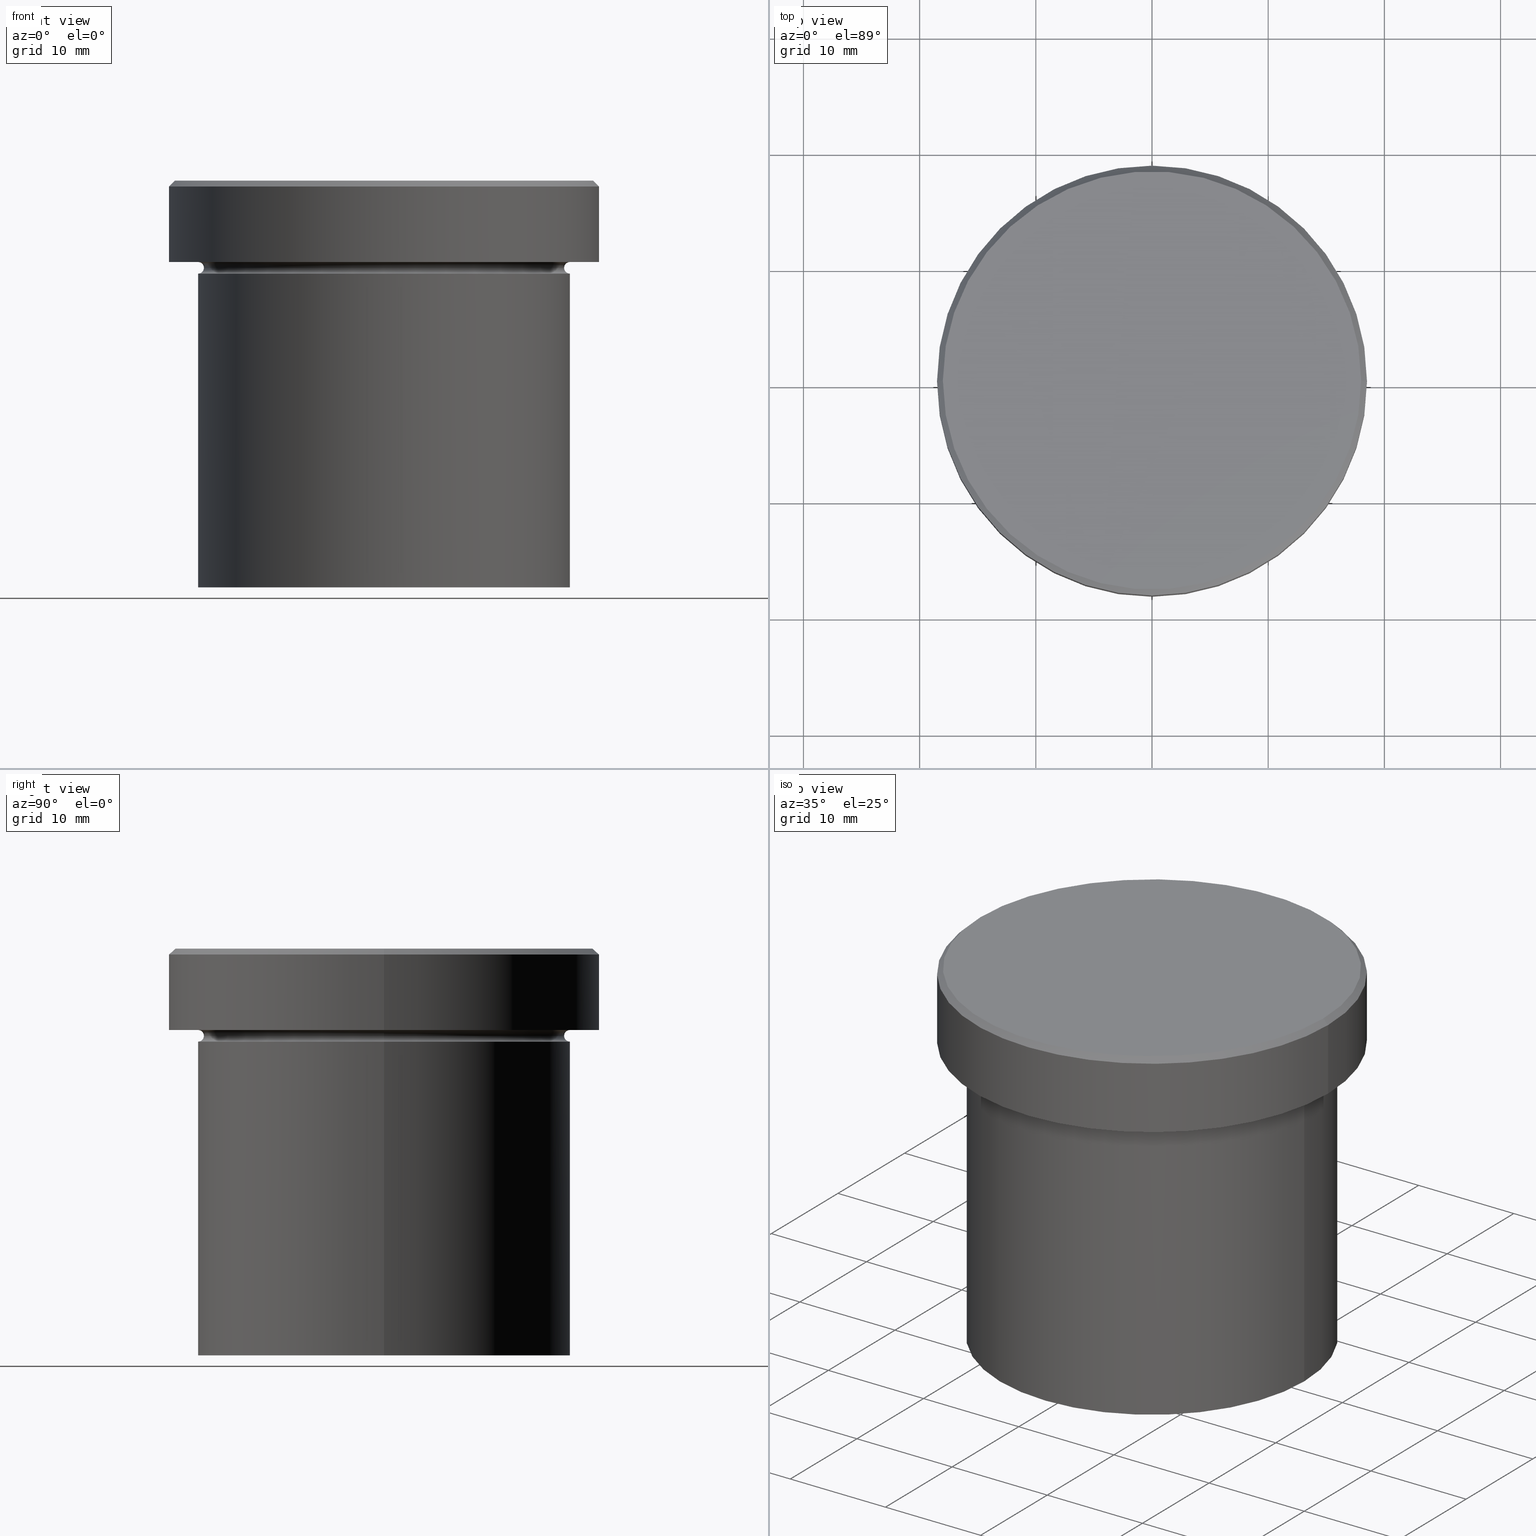
[diagram: canonical four-view strip — front | top / right | iso, engineering-drawing reading convention]
A machine part, canonical four-view strip (front | top / right | iso — engineering-drawing reading convention). The complete STEP part file that produces these views, byte-faithful:
ISO-10303-21;
HEADER;
FILE_DESCRIPTION (( 'STEP AP203' ),
    '1' );
FILE_NAME ('cc8f.STEP',
    '2024-01-02T19:17:05',
    ( '' ),
    ( '' ),
    'SwSTEP 2.0',
    'SolidWorks 2019',
    '' );
FILE_SCHEMA (( 'CONFIG_CONTROL_DESIGN' ));
ENDSEC;

DATA;
#1 = DIRECTION ( 'NONE',  ( 1.000000000000000000, 0.000000000000000000, 0.000000000000000000 ) ) ;
#2 = PLANE ( 'NONE',  #387 ) ;
#3 = DIRECTION ( 'NONE',  ( 1.000000000000000000, 0.000000000000000000, 0.000000000000000000 ) ) ;
#4 = CARTESIAN_POINT ( 'NONE',  ( 0.000000000000000000, 0.000000000000000000, -7.500000000000000000 ) ) ;
#5 = DIRECTION ( 'NONE',  ( 1.000000000000000000, 0.000000000000000000, 0.000000000000000000 ) ) ;
#6 = APPROVAL_PERSON_ORGANIZATION ( #404, #252, #60 ) ;
#7 = CYLINDRICAL_SURFACE ( 'NONE', #232, 16.00000000000000000 ) ;
#8 = EDGE_CURVE ( 'NONE', #229, #10, #128, .T. ) ;
#9 = FACE_OUTER_BOUND ( 'NONE', #403, .T. ) ;
#10 = VERTEX_POINT ( 'NONE', #344 ) ;
#11 = ADVANCED_FACE ( 'NONE', ( #65 ), #193, .T. ) ;
#12 = ORIENTED_EDGE ( 'NONE', *, *, #263, .F. ) ;
#13 = VERTEX_POINT ( 'NONE', #191 ) ;
#14 = APPROVAL_ROLE ( '' ) ;
#15 = EDGE_LOOP ( 'NONE', ( #257, #337 ) ) ;
#16 = AXIS2_PLACEMENT_3D ( 'NONE', #153, #48, #365 ) ;
#17 = ORIENTED_EDGE ( 'NONE', *, *, #8, .F. ) ;
#18 = FACE_OUTER_BOUND ( 'NONE', #24, .T. ) ;
#19 = DIRECTION ( 'NONE',  ( -0.000000000000000000, -0.000000000000000000, 1.000000000000000000 ) ) ;
#20 = CLOSED_SHELL ( 'NONE', ( #26, #395, #332, #329, #392, #39, #11, #360, #269, #218, #187, #33, #113 ) ) ;
#21 = EDGE_LOOP ( 'NONE', ( #148, #104, #323, #394 ) ) ;
#22 = CARTESIAN_POINT ( 'NONE',  ( 0.000000000000000000, 0.000000000000000000, -35.00000000000000000 ) ) ;
#23 = CIRCLE ( 'NONE', #409, 18.50000000000000000 ) ;
#24 = EDGE_LOOP ( 'NONE', ( #267, #326, #330, #17 ) ) ;
#25 = CARTESIAN_POINT ( 'NONE',  ( 0.000000000000000000, 0.000000000000000000, 0.000000000000000000 ) ) ;
#26 = ADVANCED_FACE ( 'NONE', ( #317 ), #341, .T. ) ;
#27 = CARTESIAN_POINT ( 'NONE',  ( 0.000000000000000000, 0.000000000000000000, -6.999999999999999112 ) ) ;
#28 = AXIS2_PLACEMENT_3D ( 'NONE', #157, #19, #212 ) ;
#29 = CARTESIAN_POINT ( 'NONE',  ( 16.00000000000000000, 1.959434878635765131E-15, -6.999999999999999112 ) ) ;
#30 = DIRECTION ( 'NONE',  ( -1.000000000000000000, 0.000000000000000000, 0.000000000000000000 ) ) ;
#31 = CARTESIAN_POINT ( 'NONE',  ( 0.000000000000000000, 0.000000000000000000, -35.00000000000000000 ) ) ;
#32 = CARTESIAN_POINT ( 'NONE',  ( 0.000000000000000000, 0.000000000000000000, -7.500000000000000000 ) ) ;
#33 = ADVANCED_FACE ( 'NONE', ( #281 ), #277, .F. ) ;
#34 = DIRECTION ( 'NONE',  ( 1.000000000000000000, 0.000000000000000000, 0.000000000000000000 ) ) ;
#35 = APPROVAL_PERSON_ORGANIZATION ( #177, #50, #400 ) ;
#36 = DIRECTION ( 'NONE',  ( 0.000000000000000000, 0.000000000000000000, -1.000000000000000000 ) ) ;
#37 = DIRECTION ( 'NONE',  ( 1.000000000000000000, 0.000000000000000000, 0.000000000000000000 ) ) ;
#38 = EDGE_LOOP ( 'NONE', ( #200, #274, #137, #301 ) ) ;
#39 = ADVANCED_FACE ( 'NONE', ( #9 ), #2, .T. ) ;
#40 = EDGE_LOOP ( 'NONE', ( #241, #270, #74, #109 ) ) ;
#41 = AXIS2_PLACEMENT_3D ( 'NONE', #322, #254, #390 ) ;
#42 = ORIENTED_EDGE ( 'NONE', *, *, #166, .T. ) ;
#43 = TOROIDAL_SURFACE ( 'NONE', #131, 16.00000000000000000, 0.5000000000000000000 ) ;
#44 = ORIENTED_EDGE ( 'NONE', *, *, #92, .T. ) ;
#45 = CC_DESIGN_DATE_AND_TIME_ASSIGNMENT ( #348, #120, ( #363 ) ) ;
#46 = ORIENTED_EDGE ( 'NONE', *, *, #285, .F. ) ;
#47 = AXIS2_PLACEMENT_3D ( 'NONE', #81, #310, #271 ) ;
#48 = DIRECTION ( 'NONE',  ( 0.000000000000000000, 0.000000000000000000, 1.000000000000000000 ) ) ;
#49 = ORIENTED_EDGE ( 'NONE', *, *, #285, .T. ) ;
#50 = APPROVAL ( #272, 'NEUR�EN�' ) ;
#51 = ORIENTED_EDGE ( 'NONE', *, *, #75, .F. ) ;
#52 = DIRECTION ( 'NONE',  ( 1.000000000000000000, 0.000000000000000000, 0.000000000000000000 ) ) ;
#53 = AXIS2_PLACEMENT_3D ( 'NONE', #117, #376, #215 ) ;
#54 = CIRCLE ( 'NONE', #290, 16.00000000000000000 ) ;
#55 = SHAPE_DEFINITION_REPRESENTATION ( #305, #111 ) ;
#56 = CC_DESIGN_DATE_AND_TIME_ASSIGNMENT ( #85, #336, ( #291 ) ) ;
#57 = LINE ( 'NONE', #368, #141 ) ;
#58 = APPROVAL_DATE_TIME ( #220, #50 ) ;
#59 = FACE_BOUND ( 'NONE', #145, .T. ) ;
#60 = APPROVAL_ROLE ( '' ) ;
#61 = CARTESIAN_POINT ( 'NONE',  ( 0.000000000000000000, 0.000000000000000000, 0.000000000000000000 ) ) ;
#62 = CARTESIAN_POINT ( 'NONE',  ( 0.000000000000000000, 0.000000000000000000, 0.000000000000000000 ) ) ;
#63 = LOCAL_TIME ( 20, 17, 5.000000000000000000, #206 ) ;
#64 = PERSON_AND_ORGANIZATION ( #361, #136 ) ;
#65 = FACE_OUTER_BOUND ( 'NONE', #171, .T. ) ;
#66 = CYLINDRICAL_SURFACE ( 'NONE', #163, 18.50000000000000000 ) ;
#67 = EDGE_CURVE ( 'NONE', #106, #359, #262, .T. ) ;
#68 = PERSON_AND_ORGANIZATION_ROLE ( 'classification_officer' ) ;
#69 = DIRECTION ( 'NONE',  ( 0.000000000000000000, -1.000000000000000000, 0.000000000000000000 ) ) ;
#70 = DIRECTION ( 'NONE',  ( 1.000000000000000000, 0.000000000000000000, 0.000000000000000000 ) ) ;
#71 = DIRECTION ( 'NONE',  ( -0.7071067811865549002, 0.000000000000000000, -0.7071067811865402453 ) ) ;
#72 = LOCAL_TIME ( 20, 17, 5.000000000000000000, #384 ) ;
#73 =( NAMED_UNIT ( * ) PLANE_ANGLE_UNIT ( ) SI_UNIT ( $, .RADIAN. ) );
#74 = ORIENTED_EDGE ( 'NONE', *, *, #139, .F. ) ;
#75 = EDGE_CURVE ( 'NONE', #106, #140, #208, .T. ) ;
#76 = ORIENTED_EDGE ( 'NONE', *, *, #210, .T. ) ;
#77 = TOROIDAL_SURFACE ( 'NONE', #130, 16.00000000000000000, 0.5000000000000000000 ) ;
#78 = LOCAL_TIME ( 20, 17, 5.000000000000000000, #240 ) ;
#79 = EDGE_CURVE ( 'NONE', #230, #229, #356, .T. ) ;
#80 = PERSON_AND_ORGANIZATION ( #361, #136 ) ;
#81 = CARTESIAN_POINT ( 'NONE',  ( -16.00000000000000000, 1.959434878635765131E-15, -7.500000000000000000 ) ) ;
#82 = ORIENTED_EDGE ( 'NONE', *, *, #201, .F. ) ;
#83 = CARTESIAN_POINT ( 'NONE',  ( -16.00000000000000000, 0.000000000000000000, -7.500000000000000000 ) ) ;
#84 = CC_DESIGN_PERSON_AND_ORGANIZATION_ASSIGNMENT ( #353, #313, ( #265 ) ) ;
#85 = DATE_AND_TIME ( #372, #294 ) ;
#86 = VERTEX_POINT ( 'NONE', #93 ) ;
#87 = EDGE_LOOP ( 'NONE', ( #138, #76, #178, #46 ) ) ;
#88 = LINE ( 'NONE', #165, #378 ) ;
#89 = APPLICATION_PROTOCOL_DEFINITION ( 'international standard', 'config_control_design', 1994, #318 ) ;
#90 = CIRCLE ( 'NONE', #333, 17.99999999999999645 ) ;
#91 = CC_DESIGN_APPROVAL ( #50, ( #265 ) ) ;
#92 = EDGE_CURVE ( 'NONE', #10, #229, #96, .T. ) ;
#93 = CARTESIAN_POINT ( 'NONE',  ( 17.99999999999999645, 2.234980408443919215E-15, 0.000000000000000000 ) ) ;
#94 = APPROVAL_STATUS ( 'not_yet_approved' ) ;
#95 = DIRECTION ( 'NONE',  ( 0.7071067811865549002, 8.659560562355021605E-17, -0.7071067811865402453 ) ) ;
#96 = CIRCLE ( 'NONE', #179, 16.00000000000000000 ) ;
#97 = CC_DESIGN_SECURITY_CLASSIFICATION ( #363, ( #265 ) ) ;
#98 = FACE_OUTER_BOUND ( 'NONE', #397, .T. ) ;
#99 = DIRECTION ( 'NONE',  ( -0.000000000000000000, -0.000000000000000000, 1.000000000000000000 ) ) ;
#100 = CARTESIAN_POINT ( 'NONE',  ( -18.50000000000000000, 2.265596578422603396E-15, -0.4999999999999936162 ) ) ;
#101 = LINE ( 'NONE', #228, #352 ) ;
#102 = AXIS2_PLACEMENT_3D ( 'NONE', #350, #36, #354 ) ;
#103 = UNCERTAINTY_MEASURE_WITH_UNIT (LENGTH_MEASURE( 1.000000000000000082E-05 ), #256, 'distance_accuracy_value', 'NONE');
#104 = ORIENTED_EDGE ( 'NONE', *, *, #201, .T. ) ;
#105 = ORIENTED_EDGE ( 'NONE', *, *, #210, .F. ) ;
#106 = VERTEX_POINT ( 'NONE', #134 ) ;
#107 = AXIS2_PLACEMENT_3D ( 'NONE', #83, #116, #331 ) ;
#108 = VECTOR ( 'NONE', #282, 1000.000000000000000 ) ;
#109 = ORIENTED_EDGE ( 'NONE', *, *, #119, .F. ) ;
#110 = CYLINDRICAL_SURFACE ( 'NONE', #142, 16.00000000000000000 ) ;
#111 = ADVANCED_BREP_SHAPE_REPRESENTATION ( 'cc8f', ( #164, #16 ), #198 ) ;
#112 = PERSON_AND_ORGANIZATION_ROLE ( 'design_owner' ) ;
#113 = ADVANCED_FACE ( 'NONE', ( #167 ), #325, .T. ) ;
#114 = DIRECTION ( 'NONE',  ( 0.000000000000000000, 0.000000000000000000, -1.000000000000000000 ) ) ;
#115 = VERTEX_POINT ( 'NONE', #358 ) ;
#116 = DIRECTION ( 'NONE',  ( -0.000000000000000000, -1.000000000000000000, -0.000000000000000000 ) ) ;
#117 = CARTESIAN_POINT ( 'NONE',  ( 0.000000000000000000, 0.000000000000000000, -8.000000000000000000 ) ) ;
#118 = DIRECTION ( 'NONE',  ( -1.000000000000000000, 0.000000000000000000, 0.000000000000000000 ) ) ;
#119 = EDGE_CURVE ( 'NONE', #121, #295, #101, .T. ) ;
#120 = DATE_TIME_ROLE ( 'classification_date' ) ;
#121 = VERTEX_POINT ( 'NONE', #303 ) ;
#122 = AXIS2_PLACEMENT_3D ( 'NONE', #300, #185, #154 ) ;
#123 = AXIS2_PLACEMENT_3D ( 'NONE', #380, #250, #70 ) ;
#124 = DIRECTION ( 'NONE',  ( -1.000000000000000000, 0.000000000000000000, 0.000000000000000000 ) ) ;
#125 = DIRECTION ( 'NONE',  ( 0.000000000000000000, 0.000000000000000000, -1.000000000000000000 ) ) ;
#126 = APPROVAL ( #173, 'NEUR�EN�' ) ;
#127 = FACE_OUTER_BOUND ( 'NONE', #204, .T. ) ;
#128 = CIRCLE ( 'NONE', #53, 16.00000000000000000 ) ;
#129 = DIRECTION ( 'NONE',  ( -0.000000000000000000, -0.000000000000000000, 1.000000000000000000 ) ) ;
#130 = AXIS2_PLACEMENT_3D ( 'NONE', #176, #207, #275 ) ;
#131 = AXIS2_PLACEMENT_3D ( 'NONE', #4, #355, #162 ) ;
#132 = DIRECTION ( 'NONE',  ( 0.000000000000000000, 0.000000000000000000, -1.000000000000000000 ) ) ;
#133 = CC_DESIGN_PERSON_AND_ORGANIZATION_ASSIGNMENT ( #80, #112, ( #296 ) ) ;
#134 = CARTESIAN_POINT ( 'NONE',  ( 15.50000000000000000, 0.000000000000000000, -7.500000000000000000 ) ) ;
#135 = ORIENTED_EDGE ( 'NONE', *, *, #180, .F. ) ;
#136 = ORGANIZATION ( 'NEUR�EN�', 'NEUR�EN�', '' ) ;
#137 = ORIENTED_EDGE ( 'NONE', *, *, #119, .T. ) ;
#138 = ORIENTED_EDGE ( 'NONE', *, *, #205, .F. ) ;
#139 = EDGE_CURVE ( 'NONE', #295, #276, #304, .T. ) ;
#140 = VERTEX_POINT ( 'NONE', #243 ) ;
#141 = VECTOR ( 'NONE', #338, 1000.000000000000000 ) ;
#142 = AXIS2_PLACEMENT_3D ( 'NONE', #146, #237, #335 ) ;
#143 = ORIENTED_EDGE ( 'NONE', *, *, #144, .T. ) ;
#144 = EDGE_CURVE ( 'NONE', #86, #121, #90, .T. ) ;
#145 = EDGE_LOOP ( 'NONE', ( #259, #405 ) ) ;
#146 = CARTESIAN_POINT ( 'NONE',  ( 0.000000000000000000, 0.000000000000000000, 0.000000000000000000 ) ) ;
#147 = APPROVAL_DATE_TIME ( #369, #126 ) ;
#148 = ORIENTED_EDGE ( 'NONE', *, *, #226, .T. ) ;
#149 = DIRECTION ( 'NONE',  ( 1.000000000000000000, 0.000000000000000000, 0.000000000000000000 ) ) ;
#150 = ORIENTED_EDGE ( 'NONE', *, *, #180, .T. ) ;
#151 = AXIS2_PLACEMENT_3D ( 'NONE', #22, #401, #149 ) ;
#152 = CARTESIAN_POINT ( 'NONE',  ( -16.00000000000000000, 1.959434878635765131E-15, -8.000000000000000000 ) ) ;
#153 = CARTESIAN_POINT ( 'NONE',  ( 0.000000000000000000, 0.000000000000000000, 0.000000000000000000 ) ) ;
#154 = DIRECTION ( 'NONE',  ( 1.000000000000000000, 0.000000000000000000, 0.000000000000000000 ) ) ;
#155 = PRODUCT_RELATED_PRODUCT_CATEGORY ( 'detail', '', ( #296 ) ) ;
#156 = EDGE_LOOP ( 'NONE', ( #82, #260, #202, #181 ) ) ;
#157 = CARTESIAN_POINT ( 'NONE',  ( 0.000000000000000000, 0.000000000000000000, 0.000000000000000000 ) ) ;
#158 = FACE_OUTER_BOUND ( 'NONE', #87, .T. ) ;
#159 = EDGE_CURVE ( 'NONE', #374, #276, #235, .T. ) ;
#160 = CARTESIAN_POINT ( 'NONE',  ( 0.000000000000000000, 0.000000000000000000, 0.000000000000000000 ) ) ;
#161 = DIRECTION ( 'NONE',  ( 0.000000000000000000, 0.000000000000000000, -1.000000000000000000 ) ) ;
#162 = DIRECTION ( 'NONE',  ( -1.000000000000000000, 0.000000000000000000, 0.000000000000000000 ) ) ;
#163 = AXIS2_PLACEMENT_3D ( 'NONE', #192, #225, #347 ) ;
#164 = MANIFOLD_SOLID_BREP ( 'Zkosen�1', #20 ) ;
#165 = CARTESIAN_POINT ( 'NONE',  ( 17.99999999999999645, 2.204364238465235033E-15, 0.000000000000000000 ) ) ;
#166 = EDGE_CURVE ( 'NONE', #121, #86, #172, .T. ) ;
#167 = FACE_OUTER_BOUND ( 'NONE', #38, .T. ) ;
#168 = ORIENTED_EDGE ( 'NONE', *, *, #196, .F. ) ;
#169 = EDGE_CURVE ( 'NONE', #230, #13, #327, .T. ) ;
#170 = VERTEX_POINT ( 'NONE', #209 ) ;
#171 = EDGE_LOOP ( 'NONE', ( #42, #143 ) ) ;
#172 = CIRCLE ( 'NONE', #28, 17.99999999999999645 ) ;
#173 = APPROVAL_STATUS ( 'not_yet_approved' ) ;
#174 = ORIENTED_EDGE ( 'NONE', *, *, #92, .F. ) ;
#175 = DIRECTION ( 'NONE',  ( -0.000000000000000000, -0.000000000000000000, 1.000000000000000000 ) ) ;
#176 = CARTESIAN_POINT ( 'NONE',  ( 0.000000000000000000, 0.000000000000000000, -7.500000000000000000 ) ) ;
#177 = PERSON_AND_ORGANIZATION ( #361, #136 ) ;
#178 = ORIENTED_EDGE ( 'NONE', *, *, #8, .T. ) ;
#179 = AXIS2_PLACEMENT_3D ( 'NONE', #292, #199, #37 ) ;
#180 = EDGE_CURVE ( 'NONE', #140, #115, #388, .T. ) ;
#181 = ORIENTED_EDGE ( 'NONE', *, *, #255, .T. ) ;
#182 = DIRECTION ( 'NONE',  ( 1.000000000000000000, 0.000000000000000000, 0.000000000000000000 ) ) ;
#183 = AXIS2_PLACEMENT_3D ( 'NONE', #27, #319, #1 ) ;
#184 = SECURITY_CLASSIFICATION_LEVEL ( 'unclassified' ) ;
#185 = DIRECTION ( 'NONE',  ( -0.000000000000000000, -0.000000000000000000, 1.000000000000000000 ) ) ;
#186 = CARTESIAN_POINT ( 'NONE',  ( 18.50000000000000000, 0.000000000000000000, -6.999999999999999112 ) ) ;
#187 = ADVANCED_FACE ( 'NONE', ( #242 ), #77, .F. ) ;
#188 = CALENDAR_DATE ( 2024, 2, 1 ) ;
#189 = CARTESIAN_POINT ( 'NONE',  ( 0.000000000000000000, 0.000000000000000000, 0.000000000000000000 ) ) ;
#190 = CYLINDRICAL_SURFACE ( 'NONE', #371, 18.50000000000000000 ) ;
#191 = CARTESIAN_POINT ( 'NONE',  ( 16.00000000000000000, 0.000000000000000000, -35.00000000000000000 ) ) ;
#192 = CARTESIAN_POINT ( 'NONE',  ( 0.000000000000000000, 0.000000000000000000, 0.000000000000000000 ) ) ;
#193 = PLANE ( 'NONE',  #287 ) ;
#194 = DIRECTION ( 'NONE',  ( 1.000000000000000000, 0.000000000000000000, 0.000000000000000000 ) ) ;
#195 = DIRECTION ( 'NONE',  ( -1.000000000000000000, 0.000000000000000000, 0.000000000000000000 ) ) ;
#196 = EDGE_CURVE ( 'NONE', #115, #359, #362, .T. ) ;
#197 = CARTESIAN_POINT ( 'NONE',  ( 0.000000000000000000, 0.000000000000000000, -6.999999999999999112 ) ) ;
#198 =( GEOMETRIC_REPRESENTATION_CONTEXT ( 3 ) GLOBAL_UNCERTAINTY_ASSIGNED_CONTEXT ( ( #103 ) ) GLOBAL_UNIT_ASSIGNED_CONTEXT ( ( #256, #73, #324 ) ) REPRESENTATION_CONTEXT ( 'NONE', 'WORKASPACE' ) );
#199 = DIRECTION ( 'NONE',  ( -0.000000000000000000, -0.000000000000000000, 1.000000000000000000 ) ) ;
#200 = ORIENTED_EDGE ( 'NONE', *, *, #239, .F. ) ;
#201 = EDGE_CURVE ( 'NONE', #170, #295, #57, .T. ) ;
#202 = ORIENTED_EDGE ( 'NONE', *, *, #159, .T. ) ;
#203 = AXIS2_PLACEMENT_3D ( 'NONE', #227, #219, #280 ) ;
#204 = EDGE_LOOP ( 'NONE', ( #266, #297, #168, #135 ) ) ;
#205 = EDGE_CURVE ( 'NONE', #140, #106, #377, .T. ) ;
#206 = COORDINATED_UNIVERSAL_TIME_OFFSET ( 1, 0, .AHEAD. ) ;
#207 = DIRECTION ( 'NONE',  ( -0.000000000000000000, -0.000000000000000000, 1.000000000000000000 ) ) ;
#208 = CIRCLE ( 'NONE', #312, 15.50000000000000000 ) ;
#209 = CARTESIAN_POINT ( 'NONE',  ( -18.50000000000000000, 2.265596578422603396E-15, -6.999999999999999112 ) ) ;
#210 = EDGE_CURVE ( 'NONE', #140, #229, #408, .T. ) ;
#211 = APPLICATION_PROTOCOL_DEFINITION ( 'international standard', 'config_control_design', 1994, #334 ) ;
#212 = DIRECTION ( 'NONE',  ( 1.000000000000000000, 0.000000000000000000, 0.000000000000000000 ) ) ;
#213 = AXIS2_PLACEMENT_3D ( 'NONE', #32, #125, #30 ) ;
#214 = MECHANICAL_CONTEXT ( 'NONE', #318, 'mechanical' ) ;
#215 = DIRECTION ( 'NONE',  ( 1.000000000000000000, 0.000000000000000000, 0.000000000000000000 ) ) ;
#216 = CIRCLE ( 'NONE', #306, 0.5000000000000004441 ) ;
#217 = CARTESIAN_POINT ( 'NONE',  ( 0.000000000000000000, 0.000000000000000000, -0.4999999999999936162 ) ) ;
#218 = ADVANCED_FACE ( 'NONE', ( #18 ), #110, .T. ) ;
#219 = DIRECTION ( 'NONE',  ( 0.000000000000000000, 0.000000000000000000, -1.000000000000000000 ) ) ;
#220 = DATE_AND_TIME ( #283, #78 ) ;
#221 = LINE ( 'NONE', #311, #108 ) ;
#222 = PERSON_AND_ORGANIZATION_ROLE ( 'creator' ) ;
#223 = CARTESIAN_POINT ( 'NONE',  ( 16.00000000000000000, 0.000000000000000000, -7.500000000000000000 ) ) ;
#224 = AXIS2_PLACEMENT_3D ( 'NONE', #197, #386, #124 ) ;
#225 = DIRECTION ( 'NONE',  ( -0.000000000000000000, -0.000000000000000000, 1.000000000000000000 ) ) ;
#226 = EDGE_CURVE ( 'NONE', #374, #170, #23, .T. ) ;
#227 = CARTESIAN_POINT ( 'NONE',  ( 0.000000000000000000, 0.000000000000000000, -0.4999999999999936162 ) ) ;
#228 = CARTESIAN_POINT ( 'NONE',  ( -17.99999999999999645, 0.000000000000000000, 0.000000000000000000 ) ) ;
#229 = VERTEX_POINT ( 'NONE', #152 ) ;
#230 = VERTEX_POINT ( 'NONE', #375 ) ;
#231 = AXIS2_PLACEMENT_3D ( 'NONE', #217, #114, #182 ) ;
#232 = AXIS2_PLACEMENT_3D ( 'NONE', #62, #247, #357 ) ;
#233 = CIRCLE ( 'NONE', #183, 18.50000000000000000 ) ;
#234 = ORIENTED_EDGE ( 'NONE', *, *, #402, .F. ) ;
#235 = LINE ( 'NONE', #373, #264 ) ;
#236 = ORIENTED_EDGE ( 'NONE', *, *, #67, .F. ) ;
#237 = DIRECTION ( 'NONE',  ( -0.000000000000000000, -0.000000000000000000, 1.000000000000000000 ) ) ;
#238 = COORDINATED_UNIVERSAL_TIME_OFFSET ( 1, 0, .AHEAD. ) ;
#239 = EDGE_CURVE ( 'NONE', #86, #276, #88, .T. ) ;
#240 = COORDINATED_UNIVERSAL_TIME_OFFSET ( 1, 0, .AHEAD. ) ;
#241 = ORIENTED_EDGE ( 'NONE', *, *, #144, .F. ) ;
#242 = FACE_OUTER_BOUND ( 'NONE', #307, .T. ) ;
#243 = CARTESIAN_POINT ( 'NONE',  ( -15.50000000000000000, 1.928818708657081344E-15, -7.500000000000000000 ) ) ;
#244 = CC_DESIGN_PERSON_AND_ORGANIZATION_ASSIGNMENT ( #64, #68, ( #363 ) ) ;
#245 = CARTESIAN_POINT ( 'NONE',  ( -16.00000000000000000, 1.959434878635765131E-15, 0.000000000000000000 ) ) ;
#246 = LOCAL_TIME ( 20, 17, 5.000000000000000000, #249 ) ;
#247 = DIRECTION ( 'NONE',  ( -0.000000000000000000, -0.000000000000000000, 1.000000000000000000 ) ) ;
#248 = FACE_OUTER_BOUND ( 'NONE', #21, .T. ) ;
#249 = COORDINATED_UNIVERSAL_TIME_OFFSET ( 1, 0, .AHEAD. ) ;
#250 = DIRECTION ( 'NONE',  ( -0.000000000000000000, -0.000000000000000000, 1.000000000000000000 ) ) ;
#251 = CIRCLE ( 'NONE', #224, 16.00000000000000000 ) ;
#252 = APPROVAL ( #94, 'NEUR�EN�' ) ;
#253 = DIRECTION ( 'NONE',  ( -1.224646799147353207E-16, 1.000000000000000000, 0.000000000000000000 ) ) ;
#254 = DIRECTION ( 'NONE',  ( 0.000000000000000000, 0.000000000000000000, -1.000000000000000000 ) ) ;
#255 = EDGE_CURVE ( 'NONE', #276, #295, #328, .T. ) ;
#256 =( LENGTH_UNIT ( ) NAMED_UNIT ( * ) SI_UNIT ( .MILLI., .METRE. ) );
#257 = ORIENTED_EDGE ( 'NONE', *, *, #226, .F. ) ;
#258 = CC_DESIGN_APPROVAL ( #126, ( #291 ) ) ;
#259 = ORIENTED_EDGE ( 'NONE', *, *, #196, .T. ) ;
#260 = ORIENTED_EDGE ( 'NONE', *, *, #382, .T. ) ;
#261 = ORIENTED_EDGE ( 'NONE', *, *, #79, .T. ) ;
#262 = CIRCLE ( 'NONE', #391, 0.5000000000000004441 ) ;
#263 = EDGE_CURVE ( 'NONE', #13, #10, #221, .T. ) ;
#264 = VECTOR ( 'NONE', #345, 1000.000000000000000 ) ;
#265 = PRODUCT_DEFINITION_FORMATION_WITH_SPECIFIED_SOURCE ( 'LIBOVOLN�', '', #296, .NOT_KNOWN. ) ;
#266 = ORIENTED_EDGE ( 'NONE', *, *, #205, .T. ) ;
#267 = ORIENTED_EDGE ( 'NONE', *, *, #79, .F. ) ;
#268 = PERSON_AND_ORGANIZATION ( #361, #136 ) ;
#269 = ADVANCED_FACE ( 'NONE', ( #59, #286 ), #383, .T. ) ;
#270 = ORIENTED_EDGE ( 'NONE', *, *, #239, .T. ) ;
#271 = DIRECTION ( 'NONE',  ( -1.000000000000000000, 1.224646799147349509E-16, 0.000000000000000000 ) ) ;
#272 = APPROVAL_STATUS ( 'not_yet_approved' ) ;
#273 = DIRECTION ( 'NONE',  ( -0.000000000000000000, -0.000000000000000000, 1.000000000000000000 ) ) ;
#274 = ORIENTED_EDGE ( 'NONE', *, *, #166, .F. ) ;
#275 = DIRECTION ( 'NONE',  ( 1.000000000000000000, 0.000000000000000000, 0.000000000000000000 ) ) ;
#276 = VERTEX_POINT ( 'NONE', #314 ) ;
#277 = TOROIDAL_SURFACE ( 'NONE', #213, 16.00000000000000000, 0.5000000000000000000 ) ;
#278 = DATE_AND_TIME ( #188, #72 ) ;
#279 = APPROVAL_PERSON_ORGANIZATION ( #298, #126, #14 ) ;
#280 = DIRECTION ( 'NONE',  ( 1.000000000000000000, 0.000000000000000000, 0.000000000000000000 ) ) ;
#281 = FACE_OUTER_BOUND ( 'NONE', #299, .T. ) ;
#282 = DIRECTION ( 'NONE',  ( -0.000000000000000000, -0.000000000000000000, 1.000000000000000000 ) ) ;
#283 = CALENDAR_DATE ( 2024, 2, 1 ) ;
#284 = DIRECTION ( 'NONE',  ( -1.000000000000000000, 0.000000000000000000, -0.000000000000000000 ) ) ;
#285 = EDGE_CURVE ( 'NONE', #106, #10, #216, .T. ) ;
#286 = FACE_OUTER_BOUND ( 'NONE', #15, .T. ) ;
#287 = AXIS2_PLACEMENT_3D ( 'NONE', #189, #346, #5 ) ;
#288 = CARTESIAN_POINT ( 'NONE',  ( 16.00000000000000000, 1.959434878635765131E-15, -7.500000000000000000 ) ) ;
#289 = DIRECTION ( 'NONE',  ( -0.000000000000000000, -0.000000000000000000, 1.000000000000000000 ) ) ;
#290 = AXIS2_PLACEMENT_3D ( 'NONE', #31, #129, #194 ) ;
#291 = PRODUCT_DEFINITION ( 'NEZN�M�', '', #265, #293 ) ;
#292 = CARTESIAN_POINT ( 'NONE',  ( 0.000000000000000000, 0.000000000000000000, -8.000000000000000000 ) ) ;
#293 = DESIGN_CONTEXT ( 'detailed design', #334, 'design' ) ;
#294 = LOCAL_TIME ( 20, 17, 5.000000000000000000, #238 ) ;
#295 = VERTEX_POINT ( 'NONE', #100 ) ;
#296 = PRODUCT ( 'cc8f', 'cc8f', '', ( #214 ) ) ;
#297 = ORIENTED_EDGE ( 'NONE', *, *, #67, .T. ) ;
#298 = PERSON_AND_ORGANIZATION ( #361, #136 ) ;
#299 = EDGE_LOOP ( 'NONE', ( #236, #364, #150, #393 ) ) ;
#300 = CARTESIAN_POINT ( 'NONE',  ( 0.000000000000000000, 0.000000000000000000, -7.500000000000000000 ) ) ;
#301 = ORIENTED_EDGE ( 'NONE', *, *, #255, .F. ) ;
#302 = CARTESIAN_POINT ( 'NONE',  ( 0.000000000000000000, 0.000000000000000000, -6.999999999999999112 ) ) ;
#303 = CARTESIAN_POINT ( 'NONE',  ( -17.99999999999999645, 0.000000000000000000, 0.000000000000000000 ) ) ;
#304 = CIRCLE ( 'NONE', #231, 18.50000000000000000 ) ;
#305 = PRODUCT_DEFINITION_SHAPE ( 'NONE', 'NONE',  #291 ) ;
#306 = AXIS2_PLACEMENT_3D ( 'NONE', #223, #69, #132 ) ;
#307 = EDGE_LOOP ( 'NONE', ( #105, #51, #49, #44 ) ) ;
#308 = CARTESIAN_POINT ( 'NONE',  ( 0.000000000000000000, 0.000000000000000000, -6.999999999999999112 ) ) ;
#309 = CALENDAR_DATE ( 2024, 2, 1 ) ;
#310 = DIRECTION ( 'NONE',  ( 1.224646799147353207E-16, 1.000000000000000000, 0.000000000000000000 ) ) ;
#311 = CARTESIAN_POINT ( 'NONE',  ( 16.00000000000000000, 0.000000000000000000, 0.000000000000000000 ) ) ;
#312 = AXIS2_PLACEMENT_3D ( 'NONE', #389, #99, #34 ) ;
#313 = PERSON_AND_ORGANIZATION_ROLE ( 'design_supplier' ) ;
#314 = CARTESIAN_POINT ( 'NONE',  ( 18.50000000000000000, 0.000000000000000000, -0.4999999999999936162 ) ) ;
#315 = CC_DESIGN_PERSON_AND_ORGANIZATION_ASSIGNMENT ( #381, #222, ( #265 ) ) ;
#316 = APPROVAL_DATE_TIME ( #278, #252 ) ;
#317 = FACE_OUTER_BOUND ( 'NONE', #40, .T. ) ;
#318 = APPLICATION_CONTEXT ( 'configuration controlled 3d designs of mechanical parts and assemblies' ) ;
#319 = DIRECTION ( 'NONE',  ( -0.000000000000000000, -0.000000000000000000, 1.000000000000000000 ) ) ;
#320 = DIRECTION ( 'NONE',  ( -1.000000000000000000, -1.224646799147349509E-16, 0.000000000000000000 ) ) ;
#321 = CC_DESIGN_APPROVAL ( #252, ( #363 ) ) ;
#322 = CARTESIAN_POINT ( 'NONE',  ( 0.000000000000000000, 0.000000000000000000, 0.000000000000000000 ) ) ;
#323 = ORIENTED_EDGE ( 'NONE', *, *, #139, .T. ) ;
#324 =( NAMED_UNIT ( * ) SI_UNIT ( $, .STERADIAN. ) SOLID_ANGLE_UNIT ( ) );
#325 = CONICAL_SURFACE ( 'NONE', #41, 17.99999999999999645, 0.7853981633974587151 ) ;
#326 = ORIENTED_EDGE ( 'NONE', *, *, #169, .T. ) ;
#327 = CIRCLE ( 'NONE', #151, 16.00000000000000000 ) ;
#328 = CIRCLE ( 'NONE', #203, 18.50000000000000000 ) ;
#329 = ADVANCED_FACE ( 'NONE', ( #98 ), #7, .T. ) ;
#330 = ORIENTED_EDGE ( 'NONE', *, *, #263, .T. ) ;
#331 = DIRECTION ( 'NONE',  ( 0.000000000000000000, 0.000000000000000000, -1.000000000000000000 ) ) ;
#332 = ADVANCED_FACE ( 'NONE', ( #158 ), #343, .F. ) ;
#333 = AXIS2_PLACEMENT_3D ( 'NONE', #25, #273, #340 ) ;
#334 = APPLICATION_CONTEXT ( 'configuration controlled 3d designs of mechanical parts and assemblies' ) ;
#335 = DIRECTION ( 'NONE',  ( 1.000000000000000000, 0.000000000000000000, 0.000000000000000000 ) ) ;
#336 = DATE_TIME_ROLE ( 'creation_date' ) ;
#337 = ORIENTED_EDGE ( 'NONE', *, *, #382, .F. ) ;
#338 = DIRECTION ( 'NONE',  ( -0.000000000000000000, -0.000000000000000000, 1.000000000000000000 ) ) ;
#339 = ORIENTED_EDGE ( 'NONE', *, *, #169, .F. ) ;
#340 = DIRECTION ( 'NONE',  ( 1.000000000000000000, 0.000000000000000000, 0.000000000000000000 ) ) ;
#341 = CONICAL_SURFACE ( 'NONE', #407, 17.99999999999999645, 0.7853981633974587151 ) ;
#342 = AXIS2_PLACEMENT_3D ( 'NONE', #308, #175, #118 ) ;
#343 = TOROIDAL_SURFACE ( 'NONE', #123, 16.00000000000000000, 0.5000000000000000000 ) ;
#344 = CARTESIAN_POINT ( 'NONE',  ( 16.00000000000000000, 0.000000000000000000, -8.000000000000000000 ) ) ;
#345 = DIRECTION ( 'NONE',  ( -0.000000000000000000, -0.000000000000000000, 1.000000000000000000 ) ) ;
#346 = DIRECTION ( 'NONE',  ( 0.000000000000000000, -0.000000000000000000, 1.000000000000000000 ) ) ;
#347 = DIRECTION ( 'NONE',  ( 1.000000000000000000, 0.000000000000000000, 0.000000000000000000 ) ) ;
#348 = DATE_AND_TIME ( #309, #246 ) ;
#349 = DIRECTION ( 'NONE',  ( 0.000000000000000000, 0.000000000000000000, -1.000000000000000000 ) ) ;
#350 = CARTESIAN_POINT ( 'NONE',  ( 0.000000000000000000, 18.50000000000000000, -6.999999999999999112 ) ) ;
#351 = EDGE_CURVE ( 'NONE', #359, #115, #251, .T. ) ;
#352 = VECTOR ( 'NONE', #71, 1000.000000000000114 ) ;
#353 = PERSON_AND_ORGANIZATION ( #361, #136 ) ;
#354 = DIRECTION ( 'NONE',  ( -1.000000000000000000, 0.000000000000000000, -0.000000000000000000 ) ) ;
#355 = DIRECTION ( 'NONE',  ( 0.000000000000000000, 0.000000000000000000, -1.000000000000000000 ) ) ;
#356 = LINE ( 'NONE', #245, #370 ) ;
#357 = DIRECTION ( 'NONE',  ( 1.000000000000000000, 0.000000000000000000, 0.000000000000000000 ) ) ;
#358 = CARTESIAN_POINT ( 'NONE',  ( -16.00000000000000000, 0.000000000000000000, -6.999999999999999112 ) ) ;
#359 = VERTEX_POINT ( 'NONE', #29 ) ;
#360 = ADVANCED_FACE ( 'NONE', ( #406 ), #66, .T. ) ;
#361 = PERSON ( 'NEUR�EN�', 'NEUR�EN�', 'NEUR�EN�', ('NEUR�EN�'), ('NEUR�EN�'), ('NEUR�EN�') ) ;
#362 = CIRCLE ( 'NONE', #342, 16.00000000000000000 ) ;
#363 = SECURITY_CLASSIFICATION ( '', '', #184 ) ;
#364 = ORIENTED_EDGE ( 'NONE', *, *, #75, .T. ) ;
#365 = DIRECTION ( 'NONE',  ( 1.000000000000000000, 0.000000000000000000, 0.000000000000000000 ) ) ;
#366 = CC_DESIGN_PERSON_AND_ORGANIZATION_ASSIGNMENT ( #268, #398, ( #291 ) ) ;
#367 = ORIENTED_EDGE ( 'NONE', *, *, #402, .T. ) ;
#368 = CARTESIAN_POINT ( 'NONE',  ( -18.50000000000000000, 2.265596578422603396E-15, 0.000000000000000000 ) ) ;
#369 = DATE_AND_TIME ( #396, #63 ) ;
#370 = VECTOR ( 'NONE', #379, 1000.000000000000000 ) ;
#371 = AXIS2_PLACEMENT_3D ( 'NONE', #160, #289, #3 ) ;
#372 = CALENDAR_DATE ( 2024, 2, 1 ) ;
#373 = CARTESIAN_POINT ( 'NONE',  ( 18.50000000000000000, 0.000000000000000000, 0.000000000000000000 ) ) ;
#374 = VERTEX_POINT ( 'NONE', #186 ) ;
#375 = CARTESIAN_POINT ( 'NONE',  ( -16.00000000000000000, 1.959434878635765131E-15, -35.00000000000000000 ) ) ;
#376 = DIRECTION ( 'NONE',  ( -0.000000000000000000, -0.000000000000000000, 1.000000000000000000 ) ) ;
#377 = CIRCLE ( 'NONE', #122, 15.50000000000000000 ) ;
#378 = VECTOR ( 'NONE', #95, 1000.000000000000114 ) ;
#379 = DIRECTION ( 'NONE',  ( -0.000000000000000000, -0.000000000000000000, 1.000000000000000000 ) ) ;
#380 = CARTESIAN_POINT ( 'NONE',  ( 0.000000000000000000, 0.000000000000000000, -7.500000000000000000 ) ) ;
#381 = PERSON_AND_ORGANIZATION ( #361, #136 ) ;
#382 = EDGE_CURVE ( 'NONE', #170, #374, #233, .T. ) ;
#383 = PLANE ( 'NONE',  #102 ) ;
#384 = COORDINATED_UNIVERSAL_TIME_OFFSET ( 1, 0, .AHEAD. ) ;
#385 = CARTESIAN_POINT ( 'NONE',  ( 0.000000000000000000, 16.00000000000000000, -35.00000000000000000 ) ) ;
#386 = DIRECTION ( 'NONE',  ( -0.000000000000000000, -0.000000000000000000, 1.000000000000000000 ) ) ;
#387 = AXIS2_PLACEMENT_3D ( 'NONE', #385, #161, #284 ) ;
#388 = CIRCLE ( 'NONE', #107, 0.5000000000000004441 ) ;
#389 = CARTESIAN_POINT ( 'NONE',  ( 0.000000000000000000, 0.000000000000000000, -7.500000000000000000 ) ) ;
#390 = DIRECTION ( 'NONE',  ( -1.000000000000000000, 0.000000000000000000, 0.000000000000000000 ) ) ;
#391 = AXIS2_PLACEMENT_3D ( 'NONE', #288, #253, #320 ) ;
#392 = ADVANCED_FACE ( 'NONE', ( #248 ), #190, .T. ) ;
#393 = ORIENTED_EDGE ( 'NONE', *, *, #351, .F. ) ;
#394 = ORIENTED_EDGE ( 'NONE', *, *, #159, .F. ) ;
#395 = ADVANCED_FACE ( 'NONE', ( #127 ), #43, .F. ) ;
#396 = CALENDAR_DATE ( 2024, 2, 1 ) ;
#397 = EDGE_LOOP ( 'NONE', ( #367, #261, #174, #12 ) ) ;
#398 = PERSON_AND_ORGANIZATION_ROLE ( 'creator' ) ;
#399 = DIRECTION ( 'NONE',  ( -0.000000000000000000, -0.000000000000000000, 1.000000000000000000 ) ) ;
#400 = APPROVAL_ROLE ( '' ) ;
#401 = DIRECTION ( 'NONE',  ( -0.000000000000000000, -0.000000000000000000, 1.000000000000000000 ) ) ;
#402 = EDGE_CURVE ( 'NONE', #13, #230, #54, .T. ) ;
#403 = EDGE_LOOP ( 'NONE', ( #234, #339 ) ) ;
#404 = PERSON_AND_ORGANIZATION ( #361, #136 ) ;
#405 = ORIENTED_EDGE ( 'NONE', *, *, #351, .T. ) ;
#406 = FACE_OUTER_BOUND ( 'NONE', #156, .T. ) ;
#407 = AXIS2_PLACEMENT_3D ( 'NONE', #61, #349, #195 ) ;
#408 = CIRCLE ( 'NONE', #47, 0.5000000000000004441 ) ;
#409 = AXIS2_PLACEMENT_3D ( 'NONE', #302, #399, #52 ) ;
ENDSEC;
END-ISO-10303-21;
